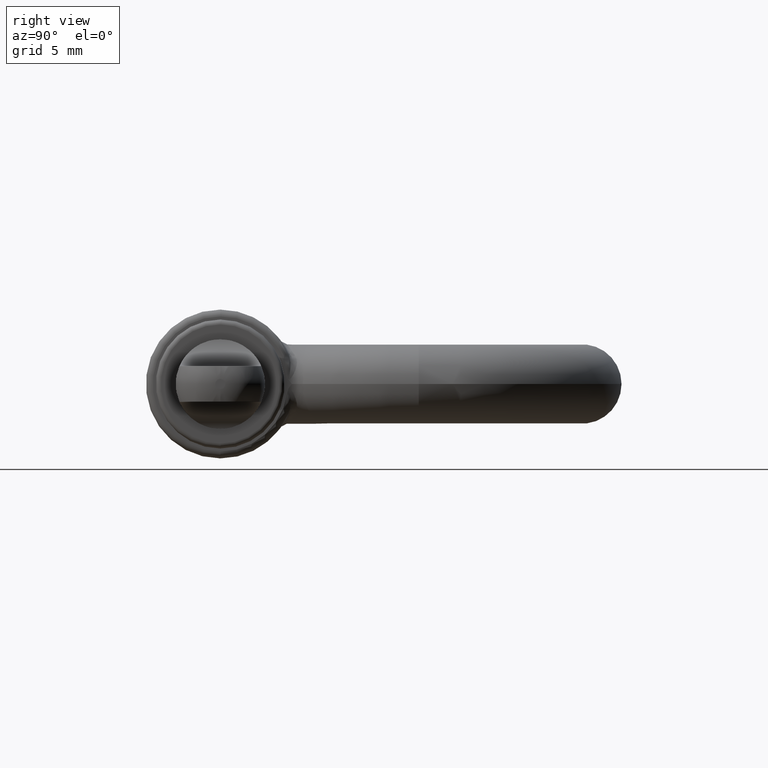
[diagram: clean part render]
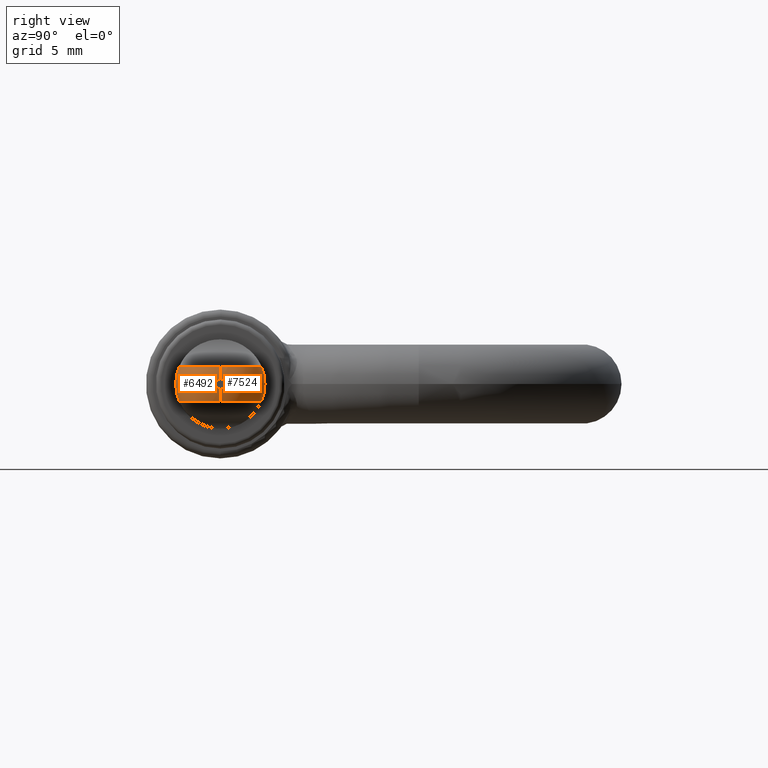
[diagram: same view with one multi-face feature highlighted, each face labeled with its STEP entity id]
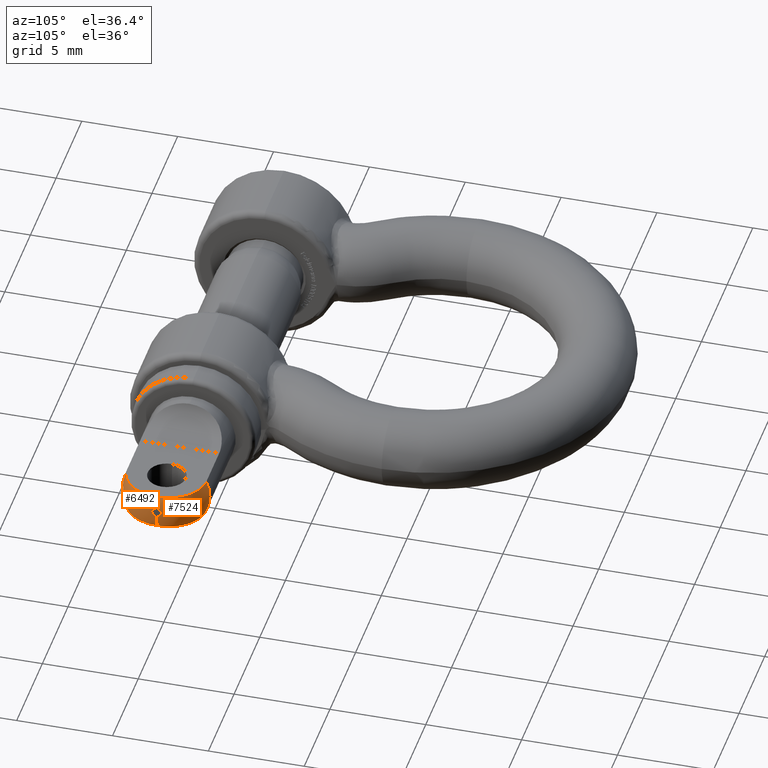
[diagram: same view with one multi-face feature highlighted, each face labeled with its STEP entity id]
A machine part, right view. The highlighted faces form ONE feature: a constant-radius fillet chain: 2 tangent blend faces with common blend radius 2 mm. The faces share edges in the B-rep.
A second angle (auxiliary view) of the same feature is appended — it is thin or edge-on in the first view.
Their STEP definitions:
[1] entity #7524 (Torus):
#190 = CARTESIAN_POINT ( 'NONE',  ( 14.49999999999999800, 0.0000000000000000000, -0.2499999999999997800 ) ) ;
#420 = CARTESIAN_POINT ( 'NONE',  ( 14.22788316150852400, 0.8885347635341457300, 0.8999999999999995800 ) ) ;
#575 = AXIS2_PLACEMENT_3D ( 'NONE', #4632, #7161, #15964 ) ;
#581 = CARTESIAN_POINT ( 'NONE',  ( 14.04441684555086300, 1.233602730185269200, 0.8999999999999992500 ) ) ;
#966 = CARTESIAN_POINT ( 'NONE',  ( 13.01356779919568900, 1.993529120299524200, -0.9000000000000005800 ) ) ;
#1080 = CARTESIAN_POINT ( 'NONE',  ( 13.48762013072488100, 1.779320311658497000, -0.9000000000000005800 ) ) ;
#1194 = CARTESIAN_POINT ( 'NONE',  ( 14.39142803193777300, 1.318156330852648200E-016, 0.8999999999999993600 ) ) ;
#1472 = CARTESIAN_POINT ( 'NONE',  ( 14.38186697470523400, 0.2600725015327278200, -0.9000000000000005800 ) ) ;
#1590 = EDGE_CURVE ( 'NONE', #6251, #6240, #7894, .T. ) ;
#1893 = CIRCLE ( 'NONE', #9297, 2.000000000000000000 ) ;
#2189 = CARTESIAN_POINT ( 'NONE',  ( 14.49999999999999800, 0.0000000000000000000, 0.0000000000000000000 ) ) ;
#2343 = CARTESIAN_POINT ( 'NONE',  ( 14.04342145953064100, 1.235191014786084500, -0.9000000000000005800 ) ) ;
#2350 = ORIENTED_EDGE ( 'NONE', *, *, #1590, .F. ) ;
#2459 = CARTESIAN_POINT ( 'NONE',  ( 12.63132215400232100, 2.062159062730128100, -0.9000000000000004700 ) ) ;
#2714 = EDGE_LOOP ( 'NONE', ( #12917, #13775, #8018, #5392, #12429, #2350 ) ) ;
#2865 = TOROIDAL_SURFACE ( 'NONE', #15600, 0.2499999999999997800, 2.000000000000000000 ) ;
#3313 = DIRECTION ( 'NONE',  ( 0.0000000000000000000, 1.000000000000000000, -1.224646799147353200E-016 ) ) ;
#3640 = CARTESIAN_POINT ( 'NONE',  ( 14.22686444273517400, 0.8909635116540949300, -0.9000000000000005800 ) ) ;
#3840 = EDGE_CURVE ( 'NONE', #7628, #7905, #15740, .T. ) ;
#3973 = CARTESIAN_POINT ( 'NONE',  ( 14.39142803193777300, -2.159742164526316100E-017, -0.9000000000000005800 ) ) ;
#4632 = CARTESIAN_POINT ( 'NONE',  ( 12.49999999999999800, 0.0000000000000000000, -0.2499999999999997800 ) ) ;
#4969 = CARTESIAN_POINT ( 'NONE',  ( 14.34197647336057100, 0.5167581848571966000, -0.9000000000000004700 ) ) ;
#5032 = CARTESIAN_POINT ( 'NONE',  ( 13.96660777000959000, 1.341949478768059300, -0.9000000000000005800 ) ) ;
#5392 = ORIENTED_EDGE ( 'NONE', *, *, #11418, .F. ) ;
#5472 = CARTESIAN_POINT ( 'NONE',  ( 13.49025200080579300, 1.777564726052290200, 0.8999999999999992500 ) ) ;
#5690 = CARTESIAN_POINT ( 'NONE',  ( 14.17375390542727900, 1.008930729768837500, 0.8999999999999993600 ) ) ;
#5950 = CARTESIAN_POINT ( 'NONE',  ( 12.49999999999999800, 3.061616997868380600E-017, 0.2499999999999997800 ) ) ;
#6207 = VERTEX_POINT ( 'NONE', #1194 ) ;
#6240 = VERTEX_POINT ( 'NONE', #15331 ) ;
#6251 = VERTEX_POINT ( 'NONE', #11692 ) ;
#6405 = EDGE_CURVE ( 'NONE', #6207, #7905, #1893, .T. ) ;
#6536 = CARTESIAN_POINT ( 'NONE',  ( 14.39142803193777300, -2.159742164526316100E-017, -0.9000000000000005800 ) ) ;
#6788 = CARTESIAN_POINT ( 'NONE',  ( 12.62963962496387000, 2.062159062730128100, 0.8999999999999993600 ) ) ;
#7161 = DIRECTION ( 'NONE',  ( 0.0000000000000000000, -1.000000000000000000, 0.0000000000000000000 ) ) ;
#7270 = CARTESIAN_POINT ( 'NONE',  ( 13.79455932335085300, 1.535563461947230300, -0.9000000000000005800 ) ) ;
#7524 = ADVANCED_FACE ( 'NONE', ( #7993 ), #2865, .T. ) ;
#7628 = VERTEX_POINT ( 'NONE', #190 ) ;
#7639 = DIRECTION ( 'NONE',  ( 0.0000000000000000000, 0.0000000000000000000, -1.000000000000000000 ) ) ;
#7894 = CIRCLE ( 'NONE', #9591, 2.250000000000000000 ) ;
#7905 = VERTEX_POINT ( 'NONE', #12793 ) ;
#7986 = CARTESIAN_POINT ( 'NONE',  ( 13.37610694705466900, 1.844751467029783100, 0.8999999999999993600 ) ) ;
#7993 = FACE_OUTER_BOUND ( 'NONE', #2714, .T. ) ;
#8018 = ORIENTED_EDGE ( 'NONE', *, *, #3840, .F. ) ;
#8276 = EDGE_CURVE ( 'NONE', #6207, #6251, #9853, .T. ) ;
#8558 = VERTEX_POINT ( 'NONE', #6536 ) ;
#8666 = CARTESIAN_POINT ( 'NONE',  ( 13.37590985879739400, 1.844836182480338800, -0.9000000000000005800 ) ) ;
#8954 = B_SPLINE_CURVE_WITH_KNOTS ( 'NONE', 3,
 ( #13794, #2459, #13680, #966, #12554, #8666, #1080, #9962, #7270, #5032, #2343, #11251, #3640, #12500, #4969, #1472, #10305, #3973 ),
 .UNSPECIFIED., .F., .F.,
 ( 4, 2, 2, 2, 2, 2, 2, 2, 4 ),
 ( 0.0000000000000000000, 0.0003883437970287137300, 0.0007766875940574274600, 0.001165031391086141500, 0.001553375188114855600, 0.001941718985143569600, 0.002330062782172283500, 0.002718406579200998000, 0.003106750376229712000 ),
 .UNSPECIFIED. ) ;
#9297 = AXIS2_PLACEMENT_3D ( 'NONE', #5950, #3313, #12232 ) ;
#9591 = AXIS2_PLACEMENT_3D ( 'NONE', #9897, #11180, #13673 ) ;
#9853 = B_SPLINE_CURVE_WITH_KNOTS ( 'NONE', 3,
 ( #11528, #13157, #10748, #420, #5690, #581, #15701, #14343, #10695, #5472, #7986, #13097, #12023, #14288, #6788, #10525 ),
 .UNSPECIFIED., .F., .F.,
 ( 4, 2, 2, 2, 2, 2, 2, 4 ),
 ( 0.003106750376229714200, 0.003883692383929591900, 0.004272163387779530500, 0.004660634391629469600, 0.005049105395479408700, 0.005437576399329346900, 0.005826047403179286000, 0.006214518407029225000 ),
 .UNSPECIFIED. ) ;
#9897 = CARTESIAN_POINT ( 'NONE',  ( 12.49999999999999800, 0.0000000000000000000, 0.0000000000000000000 ) ) ;
#9921 = DIRECTION ( 'NONE',  ( 0.0000000000000000000, 0.0000000000000000000, -1.000000000000000000 ) ) ;
#9962 = CARTESIAN_POINT ( 'NONE',  ( 13.69773061928580500, 1.624281031651025900, -0.9000000000000006900 ) ) ;
#10305 = CARTESIAN_POINT ( 'NONE',  ( 14.39142803193777500, 0.1305700812349618600, -0.9000000000000005800 ) ) ;
#10337 = DIRECTION ( 'NONE',  ( 1.000000000000000000, 0.0000000000000000000, 0.0000000000000000000 ) ) ;
#10525 = CARTESIAN_POINT ( 'NONE',  ( 12.49999999999999800, 2.062159062730128100, 0.8999999999999993600 ) ) ;
#10695 = CARTESIAN_POINT ( 'NONE',  ( 13.69859056821591100, 1.623456874645490900, 0.8999999999999993600 ) ) ;
#10748 = CARTESIAN_POINT ( 'NONE',  ( 14.35395432953614800, 0.5186835465555520400, 0.8999999999999992500 ) ) ;
#11180 = DIRECTION ( 'NONE',  ( -1.000000000000000000, -0.0000000000000000000, -0.0000000000000000000 ) ) ;
#11251 = CARTESIAN_POINT ( 'NONE',  ( 14.17370158134144400, 1.009161298887868400, -0.9000000000000004700 ) ) ;
#11418 = EDGE_CURVE ( 'NONE', #8558, #7628, #13172, .T. ) ;
#11528 = CARTESIAN_POINT ( 'NONE',  ( 14.39142803193777300, 1.318156330852648200E-016, 0.8999999999999993600 ) ) ;
#11692 = CARTESIAN_POINT ( 'NONE',  ( 12.49999999999999800, 2.062159062730128100, 0.8999999999999993600 ) ) ;
#11835 = EDGE_CURVE ( 'NONE', #6240, #8558, #8954, .T. ) ;
#12023 = CARTESIAN_POINT ( 'NONE',  ( 13.01594465396227400, 1.992903311938197800, 0.8999999999999993600 ) ) ;
#12201 = DIRECTION ( 'NONE',  ( 1.000000000000000000, 0.0000000000000000000, 0.0000000000000000000 ) ) ;
#12232 = DIRECTION ( 'NONE',  ( 0.0000000000000000000, 1.224646799147353200E-016, 1.000000000000000000 ) ) ;
#12429 = ORIENTED_EDGE ( 'NONE', *, *, #11835, .F. ) ;
#12500 = CARTESIAN_POINT ( 'NONE',  ( 14.31108299715055500, 0.6450014362490766900, -0.9000000000000004700 ) ) ;
#12554 = CARTESIAN_POINT ( 'NONE',  ( 13.13927028022663600, 1.952024560887731800, -0.9000000000000005800 ) ) ;
#12756 = CARTESIAN_POINT ( 'NONE',  ( 12.49999999999999800, 0.0000000000000000000, 0.0000000000000000000 ) ) ;
#12793 = CARTESIAN_POINT ( 'NONE',  ( 14.49999999999999800, 1.530808498934191100E-016, 0.2499999999999997800 ) ) ;
#12917 = ORIENTED_EDGE ( 'NONE', *, *, #8276, .F. ) ;
#13097 = CARTESIAN_POINT ( 'NONE',  ( 13.13896607642178800, 1.952157793391350100, 0.8999999999999992500 ) ) ;
#13157 = CARTESIAN_POINT ( 'NONE',  ( 14.39142803193777100, 0.2612257021649463400, 0.8999999999999992500 ) ) ;
#13172 = CIRCLE ( 'NONE', #575, 2.000000000000000000 ) ;
#13673 = DIRECTION ( 'NONE',  ( 0.0000000000000000000, -2.664535259100375300E-015, -1.000000000000000000 ) ) ;
#13680 = CARTESIAN_POINT ( 'NONE',  ( 12.76026137309460200, 2.048206051750345300, -0.9000000000000006900 ) ) ;
#13775 = ORIENTED_EDGE ( 'NONE', *, *, #6405, .T. ) ;
#13794 = CARTESIAN_POINT ( 'NONE',  ( 12.49999999999999800, 2.062159062730127600, -0.9000000000000005800 ) ) ;
#14288 = CARTESIAN_POINT ( 'NONE',  ( 12.76089719007095100, 2.048180242148088100, 0.8999999999999992500 ) ) ;
#14343 = CARTESIAN_POINT ( 'NONE',  ( 13.79433584521242800, 1.535953169192862500, 0.8999999999999992500 ) ) ;
#14741 = AXIS2_PLACEMENT_3D ( 'NONE', #2189, #12201, #9921 ) ;
#15331 = CARTESIAN_POINT ( 'NONE',  ( 12.49999999999999800, 2.062159062730127600, -0.9000000000000005800 ) ) ;
#15600 = AXIS2_PLACEMENT_3D ( 'NONE', #12756, #10337, #7639 ) ;
#15701 = CARTESIAN_POINT ( 'NONE',  ( 13.96859623279339700, 1.339572147097799000, 0.8999999999999993600 ) ) ;
#15740 = CIRCLE ( 'NONE', #14741, 0.2499999999999997800 ) ;
#15964 = DIRECTION ( 'NONE',  ( 0.0000000000000000000, 0.0000000000000000000, -1.000000000000000000 ) ) ;
[2] entity #6492 (Torus):
#108 = B_SPLINE_CURVE_WITH_KNOTS ( 'NONE', 3,
 ( #4809, #1192, #13799, #3652, #4868, #2354, #4923, #14942, #10083, #6308, #16327, #13748, #6193, #6253, #2466, #11365, #13858, #16383 ),
 .UNSPECIFIED., .F., .F.,
 ( 4, 2, 2, 2, 2, 2, 2, 2, 4 ),
 ( 0.0000000000000000000, 0.0003883437970287142700, 0.0007766875940574285500, 0.001165031391086142800, 0.001553375188114857100, 0.001941718985143571400, 0.002330062782172285600, 0.002718406579201000100, 0.003106750376229714200 ),
 .UNSPECIFIED. ) ;
#190 = CARTESIAN_POINT ( 'NONE',  ( 14.49999999999999800, 0.0000000000000000000, -0.2499999999999997800 ) ) ;
#381 = AXIS2_PLACEMENT_3D ( 'NONE', #9212, #15608, #388 ) ;
#388 = DIRECTION ( 'NONE',  ( 0.0000000000000000000, 0.0000000000000000000, -1.000000000000000000 ) ) ;
#440 = ORIENTED_EDGE ( 'NONE', *, *, #11418, .T. ) ;
#575 = AXIS2_PLACEMENT_3D ( 'NONE', #4632, #7161, #15964 ) ;
#600 = EDGE_CURVE ( 'NONE', #854, #7225, #10933, .T. ) ;
#854 = VERTEX_POINT ( 'NONE', #2167 ) ;
#1192 = CARTESIAN_POINT ( 'NONE',  ( 12.63132215400232100, -2.062159062730128100, 0.8999999999999994700 ) ) ;
#1194 = CARTESIAN_POINT ( 'NONE',  ( 14.39142803193777300, 1.318156330852648200E-016, 0.8999999999999993600 ) ) ;
#1278 = EDGE_CURVE ( 'NONE', #8558, #854, #11697, .T. ) ;
#1303 = AXIS2_PLACEMENT_3D ( 'NONE', #6408, #3810, #4025 ) ;
#1893 = CIRCLE ( 'NONE', #9297, 2.000000000000000000 ) ;
#2069 = TOROIDAL_SURFACE ( 'NONE', #12368, 0.2499999999999997800, 2.000000000000000000 ) ;
#2167 = CARTESIAN_POINT ( 'NONE',  ( 12.49999999999999800, -2.062159062730127600, -0.9000000000000005800 ) ) ;
#2202 = CARTESIAN_POINT ( 'NONE',  ( 13.01594465396227400, -1.992903311938197400, -0.9000000000000005800 ) ) ;
#2289 = CARTESIAN_POINT ( 'NONE',  ( 12.49999999999999800, -2.062159062730128100, 0.9000000000000000200 ) ) ;
#2354 = CARTESIAN_POINT ( 'NONE',  ( 13.37590985879739100, -1.844836182480339000, 0.8999999999999992500 ) ) ;
#2466 = CARTESIAN_POINT ( 'NONE',  ( 14.34197647336057100, -0.5167581848571960500, 0.8999999999999993600 ) ) ;
#3313 = DIRECTION ( 'NONE',  ( 0.0000000000000000000, 1.000000000000000000, -1.224646799147353200E-016 ) ) ;
#3652 = CARTESIAN_POINT ( 'NONE',  ( 13.01356779919568800, -1.993529120299525100, 0.8999999999999992500 ) ) ;
#3810 = DIRECTION ( 'NONE',  ( -1.000000000000000000, -0.0000000000000000000, -0.0000000000000000000 ) ) ;
#4025 = DIRECTION ( 'NONE',  ( 0.0000000000000000000, 0.0000000000000000000, -1.000000000000000000 ) ) ;
#4632 = CARTESIAN_POINT ( 'NONE',  ( 12.49999999999999800, 0.0000000000000000000, -0.2499999999999997800 ) ) ;
#4715 = CARTESIAN_POINT ( 'NONE',  ( 14.04441684555086500, -1.233602730185267900, -0.9000000000000005800 ) ) ;
#4771 = CARTESIAN_POINT ( 'NONE',  ( 12.49999999999999800, -2.062159062730127600, -0.9000000000000005800 ) ) ;
#4792 = DIRECTION ( 'NONE',  ( 1.000000000000000000, 0.0000000000000000000, 0.0000000000000000000 ) ) ;
#4809 = CARTESIAN_POINT ( 'NONE',  ( 12.49999999999999800, -2.062159062730128100, 0.9000000000000000200 ) ) ;
#4868 = CARTESIAN_POINT ( 'NONE',  ( 13.13927028022663800, -1.952024560887733100, 0.8999999999999993600 ) ) ;
#4871 = FACE_OUTER_BOUND ( 'NONE', #11325, .T. ) ;
#4923 = CARTESIAN_POINT ( 'NONE',  ( 13.48762013072488100, -1.779320311658497500, 0.8999999999999993600 ) ) ;
#5500 = ORIENTED_EDGE ( 'NONE', *, *, #6405, .F. ) ;
#5950 = CARTESIAN_POINT ( 'NONE',  ( 12.49999999999999800, 3.061616997868380600E-017, 0.2499999999999997800 ) ) ;
#5987 = CARTESIAN_POINT ( 'NONE',  ( 13.96859623279340000, -1.339572147097796800, -0.9000000000000005800 ) ) ;
#6045 = CARTESIAN_POINT ( 'NONE',  ( 14.39142803193777300, -2.159742164526316100E-017, -0.9000000000000005800 ) ) ;
#6193 = CARTESIAN_POINT ( 'NONE',  ( 14.22686444273517600, -0.8909635116540949300, 0.8999999999999993600 ) ) ;
#6207 = VERTEX_POINT ( 'NONE', #1194 ) ;
#6253 = CARTESIAN_POINT ( 'NONE',  ( 14.31108299715056000, -0.6450014362490769100, 0.8999999999999992500 ) ) ;
#6308 = CARTESIAN_POINT ( 'NONE',  ( 13.96660777000959000, -1.341949478768059000, 0.8999999999999992500 ) ) ;
#6405 = EDGE_CURVE ( 'NONE', #6207, #7905, #1893, .T. ) ;
#6408 = CARTESIAN_POINT ( 'NONE',  ( 12.49999999999999800, 0.0000000000000000000, 0.0000000000000000000 ) ) ;
#6492 = ADVANCED_FACE ( 'NONE', ( #4871 ), #2069, .T. ) ;
#6536 = CARTESIAN_POINT ( 'NONE',  ( 14.39142803193777300, -2.159742164526316100E-017, -0.9000000000000005800 ) ) ;
#7136 = ORIENTED_EDGE ( 'NONE', *, *, #14130, .F. ) ;
#7161 = DIRECTION ( 'NONE',  ( 0.0000000000000000000, -1.000000000000000000, 0.0000000000000000000 ) ) ;
#7196 = CARTESIAN_POINT ( 'NONE',  ( 14.17375390542727900, -1.008930729768836600, -0.9000000000000005800 ) ) ;
#7225 = VERTEX_POINT ( 'NONE', #2289 ) ;
#7247 = CARTESIAN_POINT ( 'NONE',  ( 13.37610694705466900, -1.844751467029782000, -0.9000000000000005800 ) ) ;
#7292 = CARTESIAN_POINT ( 'NONE',  ( 13.69859056821591100, -1.623456874645489800, -0.9000000000000005800 ) ) ;
#7353 = CARTESIAN_POINT ( 'NONE',  ( 14.39142803193777100, -0.2612257021649461700, -0.9000000000000004700 ) ) ;
#7628 = VERTEX_POINT ( 'NONE', #190 ) ;
#7905 = VERTEX_POINT ( 'NONE', #12793 ) ;
#8558 = VERTEX_POINT ( 'NONE', #6536 ) ;
#9212 = CARTESIAN_POINT ( 'NONE',  ( 14.49999999999999800, 0.0000000000000000000, 0.0000000000000000000 ) ) ;
#9297 = AXIS2_PLACEMENT_3D ( 'NONE', #5950, #3313, #12232 ) ;
#9659 = EDGE_CURVE ( 'NONE', #7225, #6207, #108, .T. ) ;
#9766 = CARTESIAN_POINT ( 'NONE',  ( 14.35395432953614800, -0.5186835465555519300, -0.9000000000000004700 ) ) ;
#10083 = CARTESIAN_POINT ( 'NONE',  ( 13.79455932335085500, -1.535563461947229800, 0.8999999999999993600 ) ) ;
#10709 = ORIENTED_EDGE ( 'NONE', *, *, #9659, .F. ) ;
#10933 = CIRCLE ( 'NONE', #1303, 2.250000000000000000 ) ;
#11050 = CARTESIAN_POINT ( 'NONE',  ( 13.79433584521242800, -1.535953169192860700, -0.9000000000000005800 ) ) ;
#11293 = DIRECTION ( 'NONE',  ( 0.0000000000000000000, 0.0000000000000000000, -1.000000000000000000 ) ) ;
#11325 = EDGE_LOOP ( 'NONE', ( #5500, #10709, #13093, #11515, #440, #7136 ) ) ;
#11365 = CARTESIAN_POINT ( 'NONE',  ( 14.38186697470523400, -0.2600725015327273700, 0.8999999999999992500 ) ) ;
#11418 = EDGE_CURVE ( 'NONE', #8558, #7628, #13172, .T. ) ;
#11515 = ORIENTED_EDGE ( 'NONE', *, *, #1278, .F. ) ;
#11697 = B_SPLINE_CURVE_WITH_KNOTS ( 'NONE', 3,
 ( #6045, #7353, #9766, #16062, #7196, #4715, #5987, #11050, #7292, #14854, #7247, #14801, #2202, #12366, #16116, #4771 ),
 .UNSPECIFIED., .F., .F.,
 ( 4, 2, 2, 2, 2, 2, 2, 4 ),
 ( 0.003106750376229712000, 0.003883692383929588900, 0.004272163387779527100, 0.004660634391629465300, 0.005049105395479404300, 0.005437576399329341700, 0.005826047403179280800, 0.006214518407029219000 ),
 .UNSPECIFIED. ) ;
#12232 = DIRECTION ( 'NONE',  ( 0.0000000000000000000, 1.224646799147353200E-016, 1.000000000000000000 ) ) ;
#12366 = CARTESIAN_POINT ( 'NONE',  ( 12.76089719007095100, -2.048180242148087700, -0.9000000000000005800 ) ) ;
#12368 = AXIS2_PLACEMENT_3D ( 'NONE', #13731, #4792, #11293 ) ;
#12793 = CARTESIAN_POINT ( 'NONE',  ( 14.49999999999999800, 1.530808498934191100E-016, 0.2499999999999997800 ) ) ;
#13093 = ORIENTED_EDGE ( 'NONE', *, *, #600, .F. ) ;
#13172 = CIRCLE ( 'NONE', #575, 2.000000000000000000 ) ;
#13731 = CARTESIAN_POINT ( 'NONE',  ( 12.49999999999999800, 0.0000000000000000000, 0.0000000000000000000 ) ) ;
#13748 = CARTESIAN_POINT ( 'NONE',  ( 14.17370158134144200, -1.009161298887868400, 0.8999999999999992500 ) ) ;
#13799 = CARTESIAN_POINT ( 'NONE',  ( 12.76026137309460000, -2.048206051750346200, 0.8999999999999994700 ) ) ;
#13858 = CARTESIAN_POINT ( 'NONE',  ( 14.39142803193777500, -0.1305700812349618000, 0.8999999999999993600 ) ) ;
#14130 = EDGE_CURVE ( 'NONE', #7905, #7628, #15252, .T. ) ;
#14801 = CARTESIAN_POINT ( 'NONE',  ( 13.13896607642178800, -1.952157793391349600, -0.9000000000000005800 ) ) ;
#14854 = CARTESIAN_POINT ( 'NONE',  ( 13.49025200080579300, -1.777564726052289800, -0.9000000000000005800 ) ) ;
#14942 = CARTESIAN_POINT ( 'NONE',  ( 13.69773061928579600, -1.624281031651026600, 0.8999999999999992500 ) ) ;
#15252 = CIRCLE ( 'NONE', #381, 0.2499999999999997800 ) ;
#15608 = DIRECTION ( 'NONE',  ( 1.000000000000000000, 0.0000000000000000000, 0.0000000000000000000 ) ) ;
#15964 = DIRECTION ( 'NONE',  ( 0.0000000000000000000, 0.0000000000000000000, -1.000000000000000000 ) ) ;
#16062 = CARTESIAN_POINT ( 'NONE',  ( 14.22788316150852400, -0.8885347635341451800, -0.9000000000000008000 ) ) ;
#16116 = CARTESIAN_POINT ( 'NONE',  ( 12.62963962496387000, -2.062159062730128100, -0.9000000000000005800 ) ) ;
#16327 = CARTESIAN_POINT ( 'NONE',  ( 14.04342145953064100, -1.235191014786085000, 0.8999999999999993600 ) ) ;
#16383 = CARTESIAN_POINT ( 'NONE',  ( 14.39142803193777300, 1.318156330852648200E-016, 0.8999999999999993600 ) ) ;